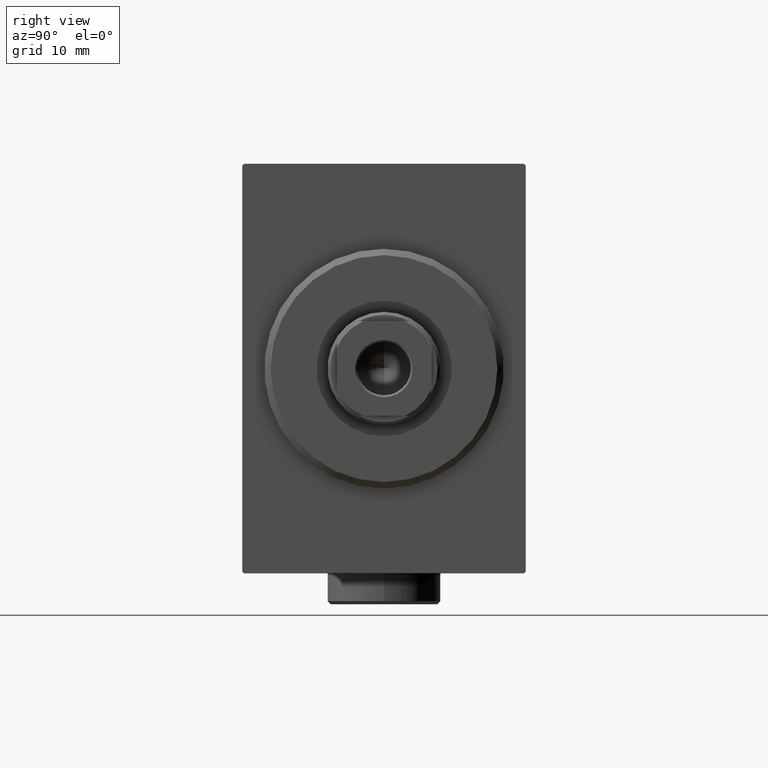
[diagram: clean part render]
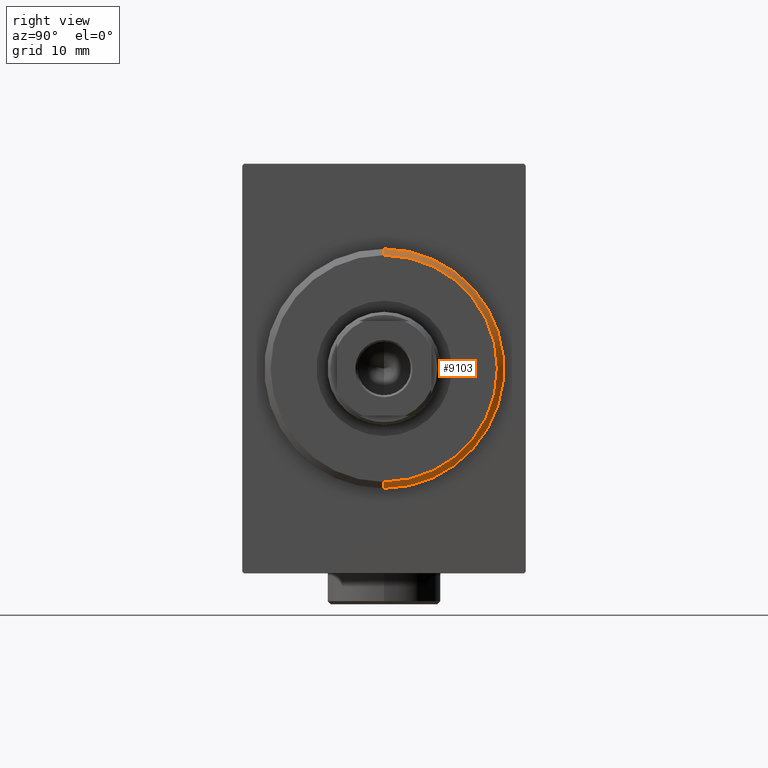
[diagram: same view with one face highlighted and labeled with its STEP entity id]
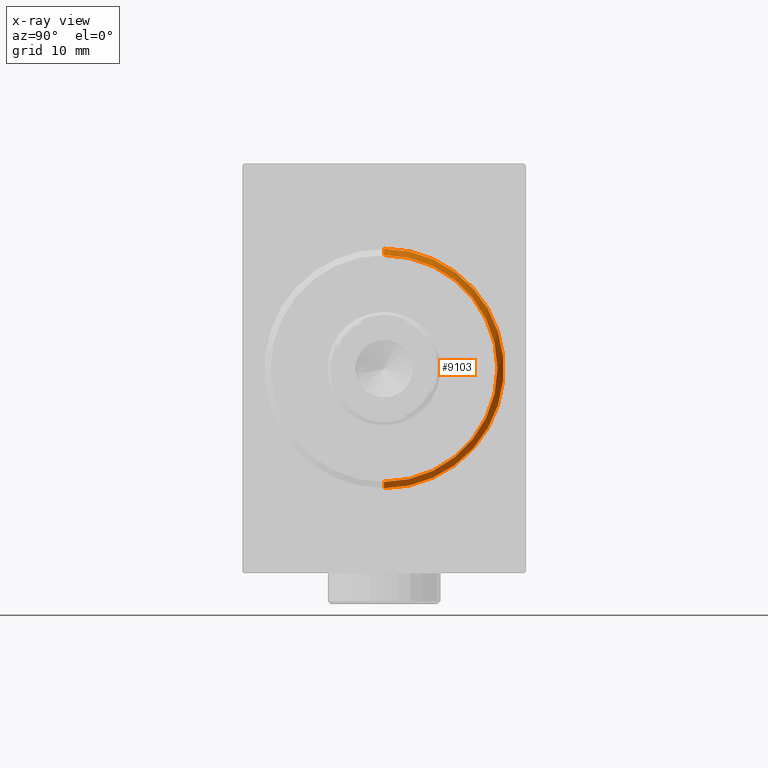
[diagram: x-ray of the same camera — body ghosted, the highlighted face saturated]
A machine part, right view. The second image highlights one B-rep face of the part: STEP entity #9103.
The next image is the same camera in x-ray: the body ghosted, the highlighted face saturated — about 0% of this face is hidden behind the body in this view.
In plain terms, the highlighted conical surface has half-angle 45 deg.
Its self-contained STEP definition (entity closure, byte-faithful):
#340 = DIRECTION ( 'NONE',  ( -1.000000000000000000, 0.000000000000000000, 0.000000000000000000 ) ) ;
#761 = VERTEX_POINT ( 'NONE', #23500 ) ;
#1566 = VECTOR ( 'NONE', #29488, 1000.000000000000000 ) ;
#5147 = LINE ( 'NONE', #18768, #1566 ) ;
#5915 = EDGE_CURVE ( 'NONE', #40077, #12390, #5147, .T. ) ;
#7033 = DIRECTION ( 'NONE',  ( 0.000000000000000000, 0.000000000000000000, -1.000000000000000000 ) ) ;
#9103 = ADVANCED_FACE ( 'NONE', ( #40104 ), #38713, .T. ) ;
#10015 = LINE ( 'NONE', #23622, #16930 ) ;
#10407 = EDGE_CURVE ( 'NONE', #28265, #40077, #28757, .T. ) ;
#12099 = ORIENTED_EDGE ( 'NONE', *, *, #41885, .T. ) ;
#12390 = VERTEX_POINT ( 'NONE', #37190 ) ;
#15214 = AXIS2_PLACEMENT_3D ( 'NONE', #21696, #31763, #41824 ) ;
#16213 = CARTESIAN_POINT ( 'NONE',  ( 3.000000000000000000, 0.000000000000000000, 0.000000000000000000 ) ) ;
#16679 = CIRCLE ( 'NONE', #22360, 19.00000000000000000 ) ;
#16930 = VECTOR ( 'NONE', #33914, 1000.000000000000000 ) ;
#18768 = CARTESIAN_POINT ( 'NONE',  ( 3.000000000000000000, 0.000000000000000000, 17.99999999999999645 ) ) ;
#21008 = CARTESIAN_POINT ( 'NONE',  ( 3.000000000000000000, 2.265596578422603002E-15, -17.99999999999999645 ) ) ;
#21696 = CARTESIAN_POINT ( 'NONE',  ( 3.000000000000000000, 0.000000000000000000, 0.000000000000000000 ) ) ;
#22360 = AXIS2_PLACEMENT_3D ( 'NONE', #34484, #340, #7033 ) ;
#23500 = CARTESIAN_POINT ( 'NONE',  ( 1.999999999999992228, 2.326828918379970970E-15, -19.00000000000000000 ) ) ;
#23622 = CARTESIAN_POINT ( 'NONE',  ( 3.000000000000000000, 2.204364238465235033E-15, -17.99999999999999645 ) ) ;
#28265 = VERTEX_POINT ( 'NONE', #21008 ) ;
#28757 = CIRCLE ( 'NONE', #15214, 17.99999999999999645 ) ;
#29381 = DIRECTION ( 'NONE',  ( -1.000000000000000000, 0.000000000000000000, 0.000000000000000000 ) ) ;
#29440 = AXIS2_PLACEMENT_3D ( 'NONE', #16213, #29381, #36524 ) ;
#29488 = DIRECTION ( 'NONE',  ( -0.7071067811865487940, 0.000000000000000000, 0.7071067811865463515 ) ) ;
#31763 = DIRECTION ( 'NONE',  ( 1.000000000000000000, -0.000000000000000000, 0.000000000000000000 ) ) ;
#31954 = EDGE_CURVE ( 'NONE', #12390, #761, #16679, .T. ) ;
#33914 = DIRECTION ( 'NONE',  ( -0.7071067811865487940, 8.659560562354918067E-17, -0.7071067811865463515 ) ) ;
#34199 = ORIENTED_EDGE ( 'NONE', *, *, #31954, .F. ) ;
#34484 = CARTESIAN_POINT ( 'NONE',  ( 1.999999999999992228, 0.000000000000000000, 0.000000000000000000 ) ) ;
#34864 = EDGE_LOOP ( 'NONE', ( #41917, #12099, #34199, #37585 ) ) ;
#35779 = CARTESIAN_POINT ( 'NONE',  ( 3.000000000000000000, 0.000000000000000000, 17.99999999999999645 ) ) ;
#36524 = DIRECTION ( 'NONE',  ( 0.000000000000000000, 0.000000000000000000, 1.000000000000000000 ) ) ;
#37190 = CARTESIAN_POINT ( 'NONE',  ( 1.999999999999992228, 0.000000000000000000, 19.00000000000000000 ) ) ;
#37585 = ORIENTED_EDGE ( 'NONE', *, *, #5915, .F. ) ;
#38713 = CONICAL_SURFACE ( 'NONE', #29440, 17.99999999999999645, 0.7853981633974466137 ) ;
#40077 = VERTEX_POINT ( 'NONE', #35779 ) ;
#40104 = FACE_OUTER_BOUND ( 'NONE', #34864, .T. ) ;
#41824 = DIRECTION ( 'NONE',  ( 0.000000000000000000, 0.000000000000000000, -1.000000000000000000 ) ) ;
#41885 = EDGE_CURVE ( 'NONE', #28265, #761, #10015, .T. ) ;
#41917 = ORIENTED_EDGE ( 'NONE', *, *, #10407, .F. ) ;